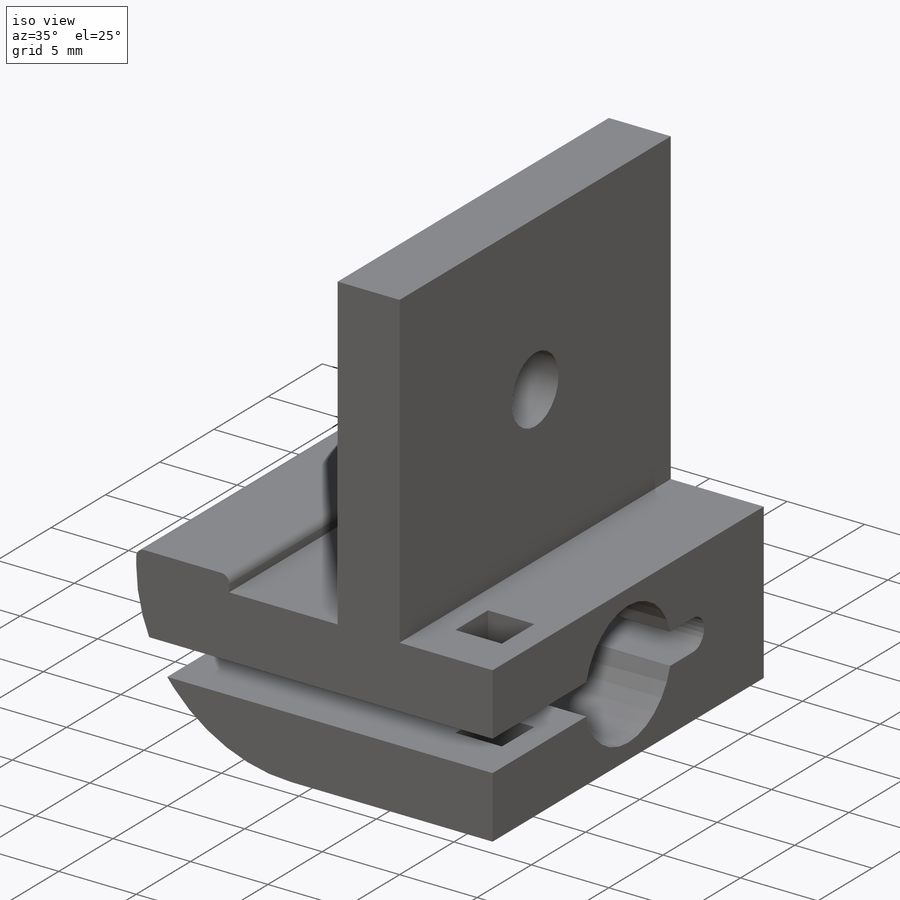
[diagram: iso view]
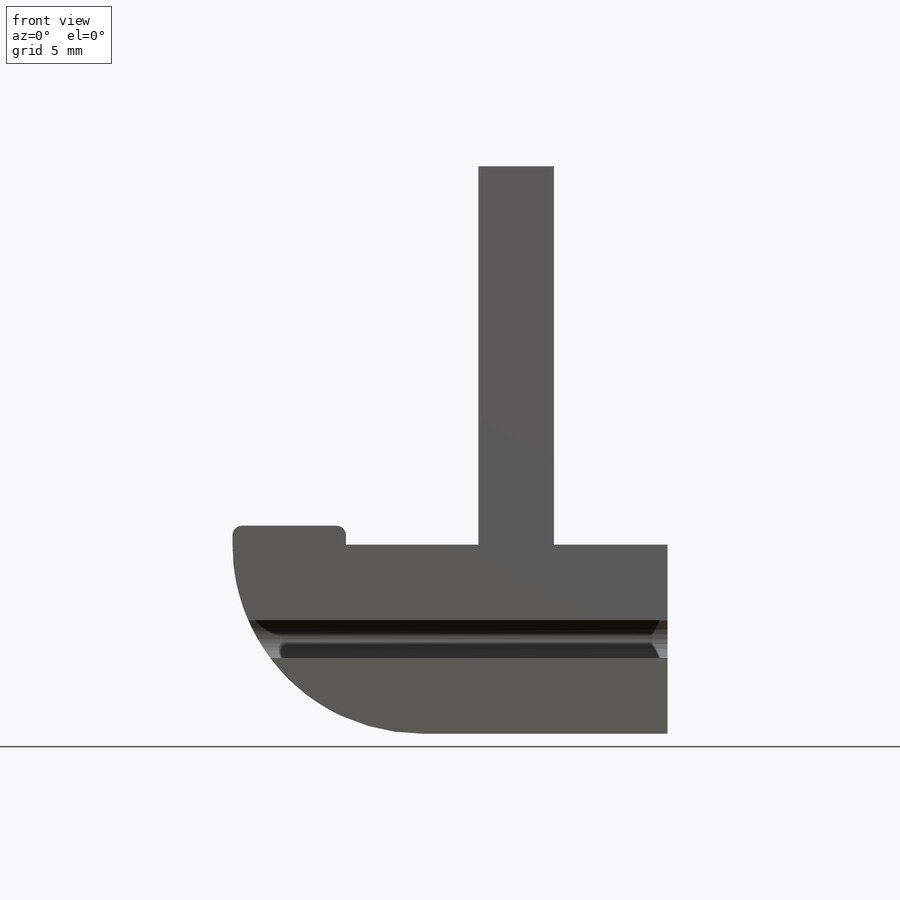
[diagram: front view]
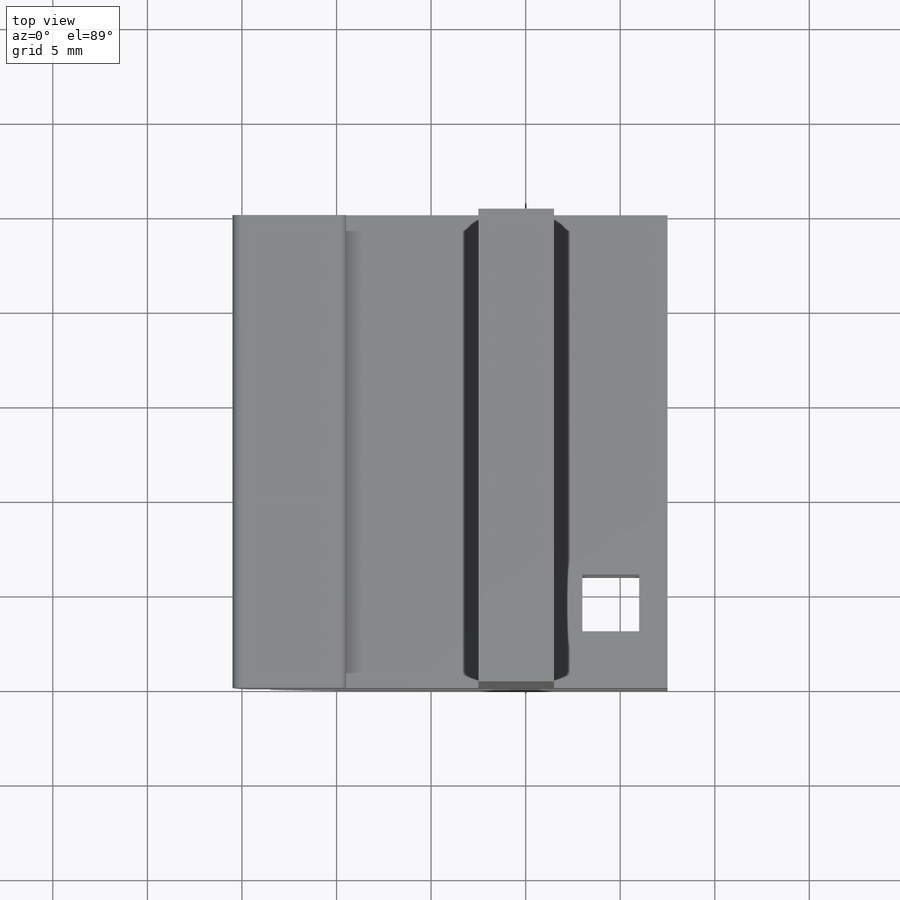
[diagram: top view]
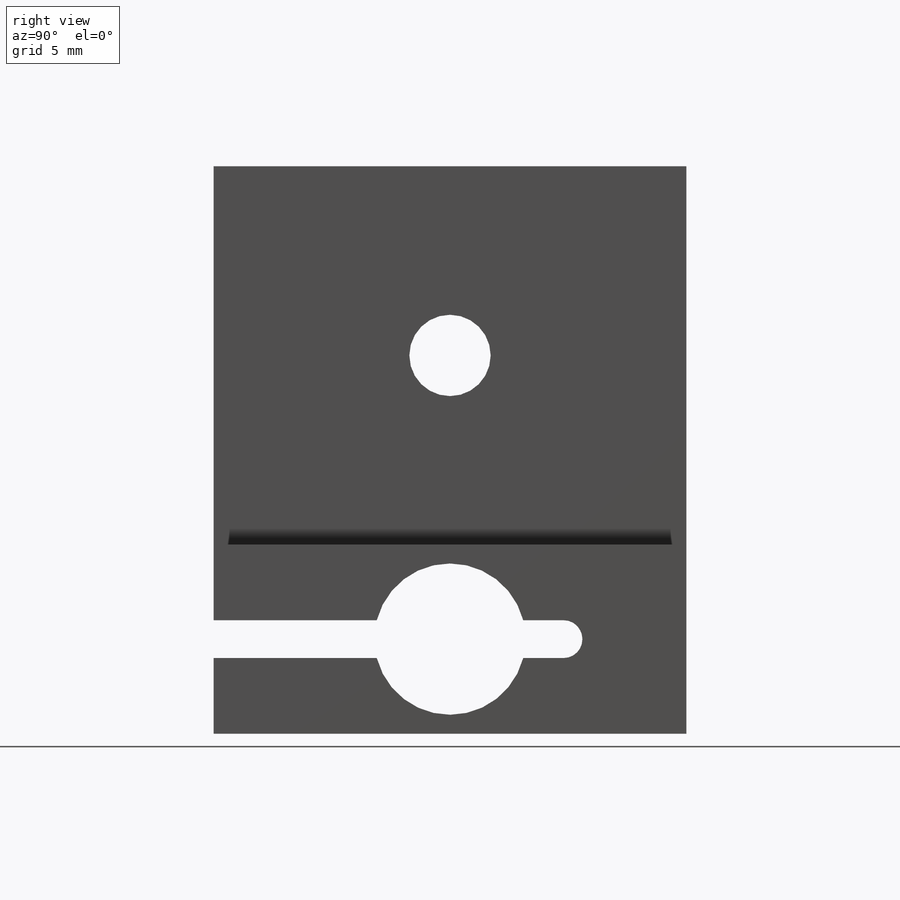
[diagram: right view]
SOLIDWORKS PART (.sldprt)
format: sldprt  version: not decoded by parser v0  size: 684,544 bytes
history: native  units: mm
features: sketch x9, fillet x4, plane x3, cut_extrude x3, extrude x2, hole x2, material x1, move_body x1 (+9 scaffold rows collapsed; 1 parser-record rows omitted)
feature tree (35):
  scaffold x9  (default folders/planes/origin — collapsed)
  material  "Matériau <non spécifié>"
  plane  "Plan de face"
  plane  "Plan de dessus"
  plane  "Plan de droite"
  sketch  "Esquisse1"  dims[c1.D7=~9.295902mm c1.D8=~9.295902mm c1.D1=11.0mm c1.D2=28.0mm c1.D3=30.0mm c1.D4=4.0mm c1.D5=~10.08324mm c2.D1=20.0mm c2.D2=13.0mm c2.D5=1.0mm c2.D6=6.0mm c2.D7=~12.623395mm c2.D3=12.0mm c3.D7=11.0mm c3.D8=~22.719053mm c3.D1=30.0mm c3.D2=20.0mm]
  extrude  "Boss.-Extru.1"  Depth=25mm
  hole  "Dégagement M41"  Diameter=4.3mm Depth=5mm
  sketch  "Esquisse3"  dims[D1=10.0mm D2=25.0mm]
  sketch  "Esquisse2"  dims[hole-wizard template sketch: 46 standard entries collapsed; hole parameters kept: c15.Diamètre du perçage=4.3mm c15.Profondeur du perçage=5.0mm c15.D3=~14.816244mm c15.Angle de pointe=180.0deg]
  sketch  "Esquisse4"  dims[c1.D4=8.0mm c1.D6=0.99mm c1.D7=0.99mm c1.D1=~2.699188mm c1.D2=~14.86962mm c2.D1=19.5mm c2.D2=4.5mm c2.D3=4.5mm c2.D5=12.5mm c2.D6=2.0mm c3.D5=12.5mm c3.D2=4.5mm c3.D3=4.5mm c3.D8=4.5mm c3.D9=~12.539936mm c4.D8=25.0mm c4.D2=2.0mm c5.D8=0.5mm c5.D3=1.0mm c6.D8=5.0mm c6.D9=6.0mm]
  cut_extrude  "Enlèv. mat.-Extru.1"  [1 undecoded]
  sketch  "Esquisse5"  dims[c1.D1=3.0mm c1.D2=3.0mm c2.D1=3.0mm c2.D2=3.0mm c2.D3=~4.222858mm c3.D2=3.0mm]
  cut_extrude  "Enlèv. mat.-Extru.2"  [1 undecoded]
  sketch  "Esquisse6"  dims[D1=0.0mm]
  extrude  "Boss.-Extru.2"  [1 undecoded]
  fillet  "Congé2"  Radius=6mm
  fillet  "Congé3"  Radius=10mm
  fillet  "Congé4"  Radius=1mm
  hole  "Dégagement M42"  Diameter=4.3mm Depth=5mm
  sketch  "Esquisse8"  dims[D1=10.0mm]
  sketch  "Esquisse7"  dims[hole-wizard template sketch: 46 standard entries collapsed; hole parameters kept: c15.Diamètre du perçage=4.3mm c15.Profondeur du perçage=5.0mm c15.D3=~14.816244mm c15.Angle de pointe=180.0deg]
  sketch  "Esquisse9"  dims[c1.D1=1.0mm c1.D3=1.0mm c2.D1=1.0mm c2.D2=1.0mm c2.D3=28.0mm]
  cut_extrude  "Enlèv. mat.-Extru.3"  [1 undecoded]
  fillet  "Congé5"  Radius=1mm
  parser-record x1  (decoder bookkeeping rows leaked as tree rows — omitted from the tree; the rows remain in map.json)
  move_body  "Corps-Déplacer/Copier1"
decode coverage: 16 of 21 modeling features carry decoded parameters
note: ~ marks probable driven/reference dimensions
note: 4 parameter values undecoded
summary: no parameter record found for 4 features
note: suppression state not decoded; provenance and decode notes live in map.json
